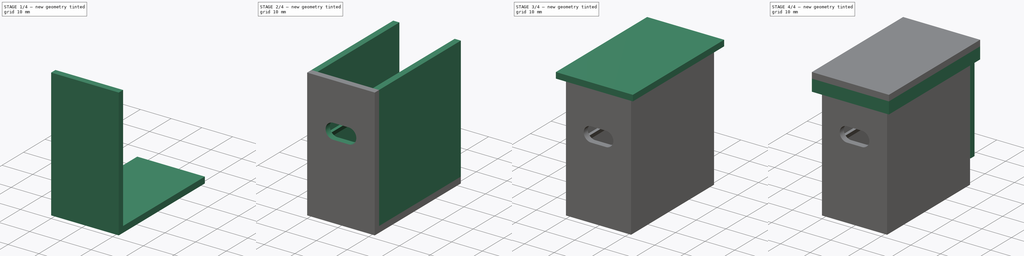
[diagram: build sequence overview — one tinted view per stage of 4, left to right]
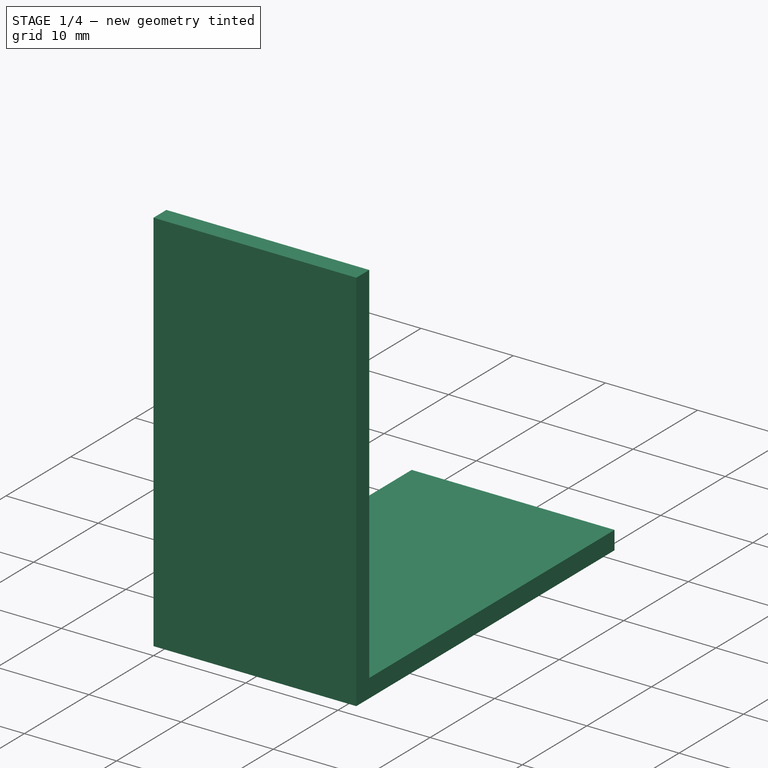
[diagram: stage 1 of 4 — iso view after this stage's code; geometry added in this stage tinted green]
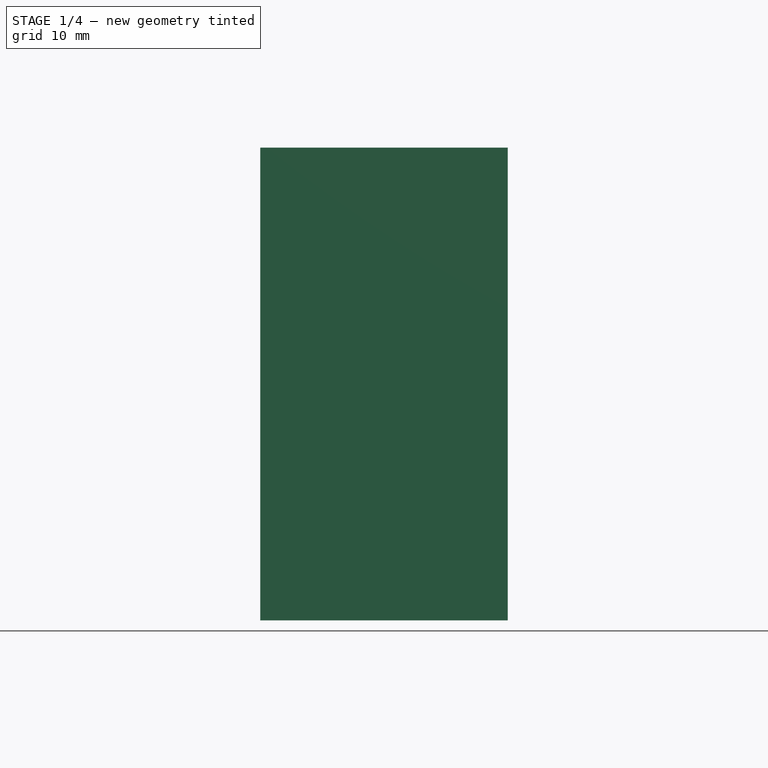
[diagram: stage 1 of 4 — front view after this stage's code; geometry added in this stage tinted green]
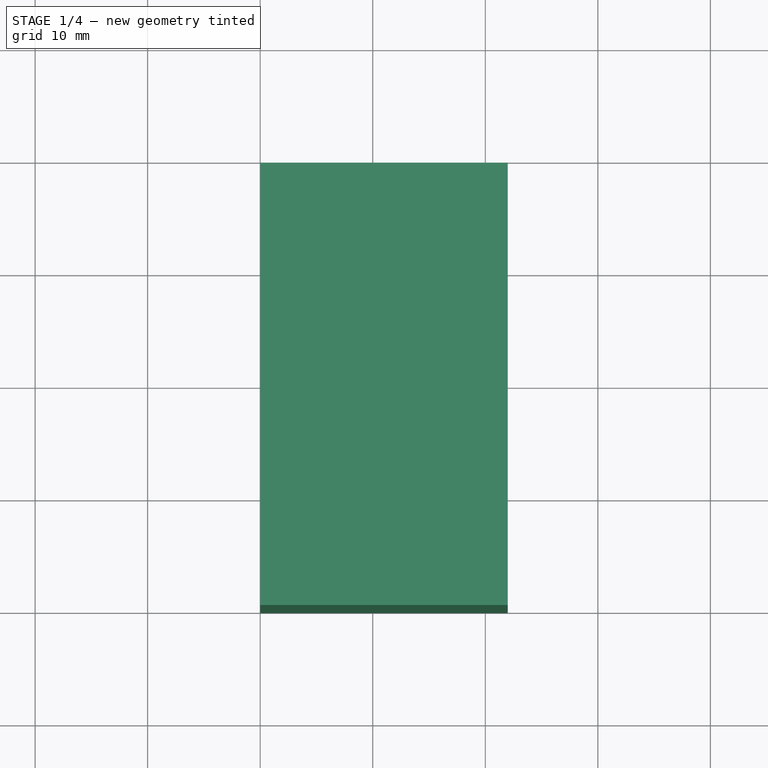
[diagram: stage 1 of 4 — top view after this stage's code; geometry added in this stage tinted green]
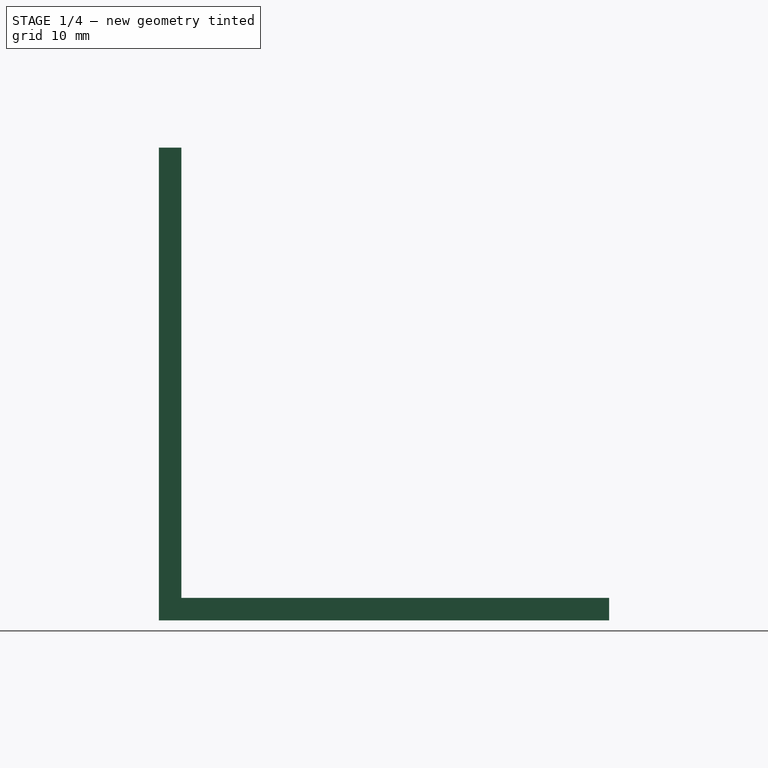
[diagram: stage 1 of 4 — right view after this stage's code; geometry added in this stage tinted green]
FCSTD DOCUMENT  (FreeCAD 0.21R33771 (Git))
Label: RP2040_Zero_Case
License: Creative Commons Attribution-NonCommercial 4.0
LicenseURL: https://creativecommons.org/licenses/by-nc/4.0/
objects: Sketcher::SketchObject×8, PartDesign::Pad×7, PartDesign::Pocket×3, PartDesign::Body×2, Part::Part2DObjectPython×2, Spreadsheet::Sheet×1, PartDesign::Plane×1
note: 33 computed .brp shape members not serialized (recipe doc carries the construction recipe); baked Part::Feature solids carry a one-line shape summary decoded from their .brp

FEATURE [Sketcher::SketchObject] Sketch  label="Base_Sketch"
  FullyConstrained = true
  MapMode = 5
  Support = -> [XY_Plane]
  expr: Constraints[10] = Spreadsheet.Base_Width
  expr: Constraints[9] = Spreadsheet.Base_Length
  sketch-geometry (4):
    g0: LineSegment StartX=0 StartY=0 StartZ=0 EndX=22 EndY=0 EndZ=0
    g1: LineSegment StartX=22 StartY=0 StartZ=0 EndX=22 EndY=40 EndZ=0
    g2: LineSegment StartX=22 StartY=40 StartZ=0 EndX=0 EndY=40 EndZ=0
    g3: LineSegment StartX=0 StartY=40 StartZ=0 EndX=0 EndY=0 EndZ=0
  constraints (11):
    c: Coincident(g0,g1)
    c: Coincident(g1,g2)
    c: Coincident(g2,g3)
    c: Coincident(g3,g0)
    c: Horizontal(g0)
    c: Horizontal(g2)
    c: Vertical(g1)
    c: Vertical(g3)
    c: Coincident(g0,g-1)
    c: DistanceY(g1,g1) = 40
    c: DistanceX(g0,g0) = 22
FEATURE [PartDesign::Pad] Pad  label="Base_Pad"
  Direction = (0,0,1)
  Length = 2
  Length2 = 10
  Profile = -> Sketch
  ReferenceAxis = -> Sketch [N_Axis]
  Reversed = true
  Type = 0
FEATURE [Spreadsheet::Sheet] Spreadsheet
  cells = A2='Base_Width; B2(Base_Width)=22; A3='Base_Length; B3(Base_Length)=40; A4='Main_Height; B4(Main_Height)=40; A5='Slot_Height; B5(Slot_Height)=25; A6='Slot_VOpening; B6(Slot_VOpening)=5; A7='Slot_HOpening; B7(Slot_HOpening)=10
FEATURE [Sketcher::SketchObject] Sketch002
  FullyConstrained = true
  MapMode = 5
  Support = -> [Pad]
  expr: Constraints[10] = Spreadsheet.Base_Width
  sketch-geometry (4):
    g0: LineSegment StartX=0 StartY=0 StartZ=0 EndX=22 EndY=0 EndZ=0
    g1: LineSegment StartX=22 StartY=0 StartZ=0 EndX=22 EndY=2 EndZ=0
    g2: LineSegment StartX=22 StartY=2 StartZ=0 EndX=0 EndY=2 EndZ=0
    g3: LineSegment StartX=0 StartY=2 StartZ=0 EndX=0 EndY=0 EndZ=0
  constraints (11):
    c: Coincident(g0,g1)
    c: Coincident(g1,g2)
    c: Coincident(g2,g3)
    c: Coincident(g3,g0)
    c: Horizontal(g0)
    c: Horizontal(g2)
    c: Vertical(g1)
    c: Vertical(g3)
    c: Coincident(g0,g-1)
    c: DistanceY(g1,g1) = 2
    c: DistanceX(g2,g2) = 22
FEATURE [PartDesign::Pad] Pad001
  BaseFeature = -> Pad
  Direction = (0,0,1)
  Length = 40
  Length2 = 10
  Profile = -> Sketch002
  ReferenceAxis = -> Sketch002 [N_Axis]
  Type = 0
  expr: Length = Spreadsheet.Main_Height
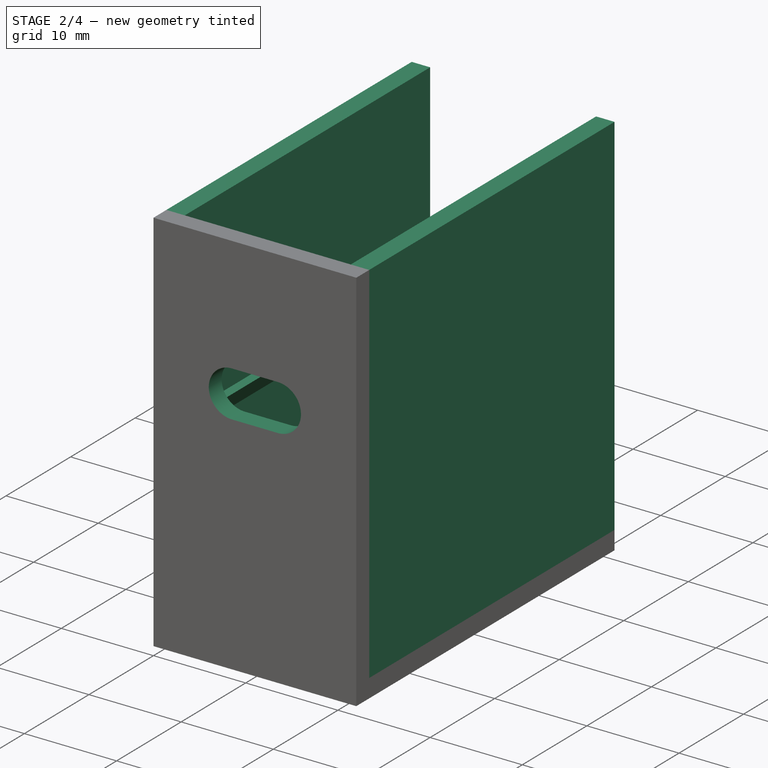
[diagram: stage 2 of 4 — iso view after this stage's code; geometry added in this stage tinted green]
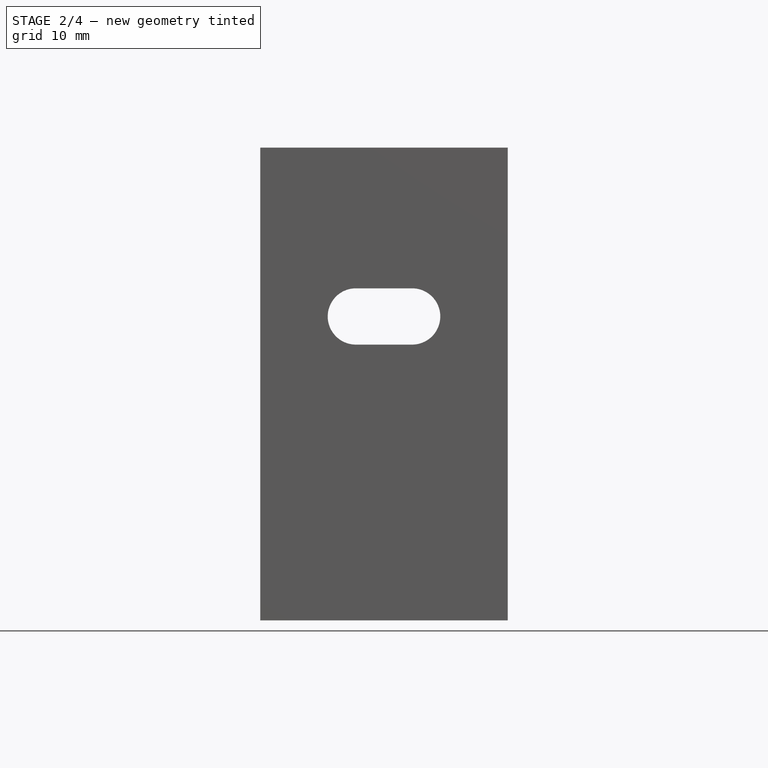
[diagram: stage 2 of 4 — front view after this stage's code; geometry added in this stage tinted green]
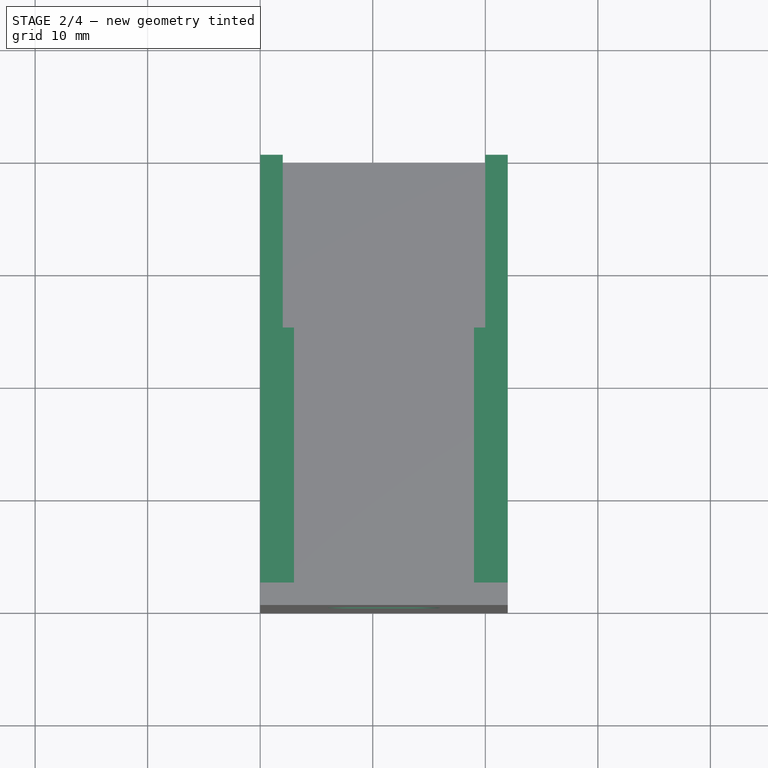
[diagram: stage 2 of 4 — top view after this stage's code; geometry added in this stage tinted green]
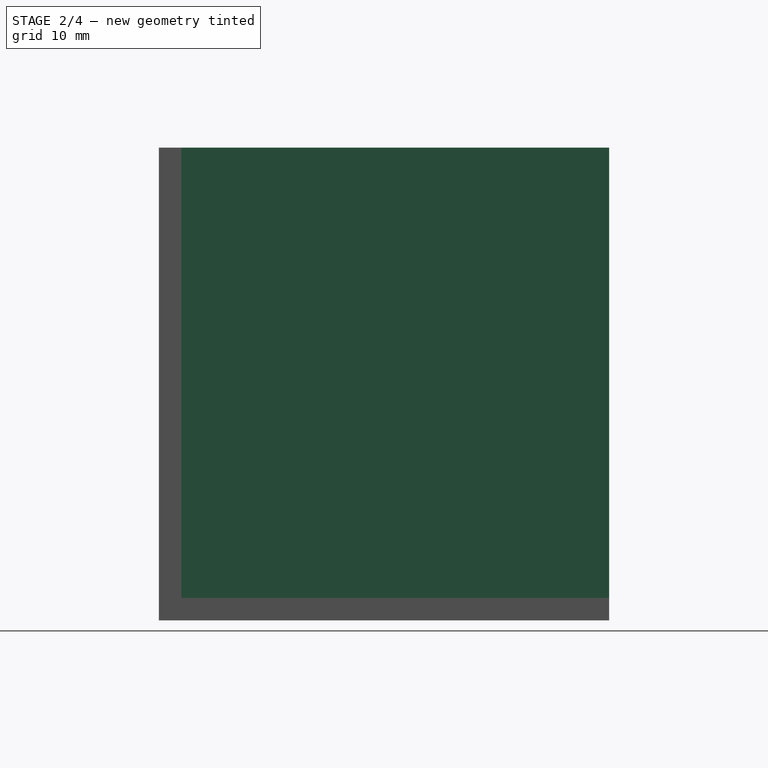
[diagram: stage 2 of 4 — right view after this stage's code; geometry added in this stage tinted green]
FEATURE [Sketcher::SketchObject] Sketch003
  FullyConstrained = true
  MapMode = 5
  Placement = pos=(0,0,0) rot=(1,0,0;1.5708rad)
  Support = -> [Pad001]
  expr: Constraints[13] = Spreadsheet.Base_Width / 2
  expr: Constraints[6] = Spreadsheet.Slot_Height
  expr: Constraints[7] = Spreadsheet.Slot_VOpening
  expr: Constraints[8] = Spreadsheet.Slot_HOpening - Spreadsheet.Slot_VOpening
  sketch-geometry (5):
    g0: ArcOfCircle CenterX=8.5 CenterY=25 CenterZ=0 NormalX=0 NormalY=0 NormalZ=1 AngleXU=0 Radius=2.5 StartAngle=1.5708 EndAngle=4.71239
    g1: ArcOfCircle CenterX=13.5 CenterY=25 CenterZ=0 NormalX=0 NormalY=0 NormalZ=1 AngleXU=0 Radius=2.5 StartAngle=4.71239 EndAngle=7.85398
    g2: LineSegment StartX=8.5 StartY=22.5 StartZ=0 EndX=13.5 EndY=22.5 EndZ=0
    g3: LineSegment StartX=13.5 StartY=27.5 StartZ=0 EndX=11 EndY=27.5 EndZ=0
    g4: LineSegment StartX=11 StartY=27.5 StartZ=0 EndX=8.5 EndY=27.5 EndZ=0
  constraints (14):
    c: Tangent(g0,g2) = -1.5708
    c: Tangent(g2,g1) = -1.5708
    c: Coincident(g1,g3) = -1.5708
    c: Coincident(g4,g0) = -1.5708
    c: Equal(g0,g1)
    c: Horizontal(g2)
    c: DistanceY(g-1,g0) = 25
    c: DistanceY(g0,g0) = 5
    c: DistanceX(g0,g1) = 5
    c: Coincident(g3,g4)
    c: Symmetric(g0,g1,g3)
    c: Vertical(g1,g1)
    c: Vertical(g0,g0)
    c: DistanceX(g-1,g3) = 11
FEATURE [PartDesign::Pocket] Pocket
  BaseFeature = -> Pad001
  Direction = (0,1,-2e-16)
  Length = 2
  Length2 = 5
  Profile = -> Sketch003
  ReferenceAxis = -> Sketch003 [N_Axis]
  Type = 0
FEATURE [Sketcher::SketchObject] Sketch004
  FullyConstrained = true
  MapMode = 5
  Support = -> [Pocket]
  expr: Constraints[19] = Spreadsheet.Base_Width
  expr: Constraints[21] = Spreadsheet.Base_Length - 2
  sketch-geometry (8):
    g0: LineSegment StartX=0 StartY=40 StartZ=0 EndX=2 EndY=40 EndZ=0
    g1: LineSegment StartX=2 StartY=40 StartZ=0 EndX=2 EndY=2 EndZ=0
    g2: LineSegment StartX=2 StartY=2 StartZ=0 EndX=0 EndY=2 EndZ=0
    g3: LineSegment StartX=0 StartY=2 StartZ=0 EndX=0 EndY=40 EndZ=0
    g4: LineSegment StartX=20 StartY=40 StartZ=0 EndX=22 EndY=40 EndZ=0
    g5: LineSegment StartX=22 StartY=40 StartZ=0 EndX=22 EndY=2 EndZ=0
    g6: LineSegment StartX=22 StartY=2 StartZ=0 EndX=20 EndY=2 EndZ=0
    g7: LineSegment StartX=20 StartY=2 StartZ=0 EndX=20 EndY=40 EndZ=0
  constraints (23):
    c: Coincident(g0,g1)
    c: Coincident(g1,g2)
    c: Coincident(g2,g3)
    c: Coincident(g3,g0)
    c: Horizontal(g0)
    c: Horizontal(g2)
    c: Vertical(g1)
    c: Coincident(g4,g5)
    c: Coincident(g5,g6)
    c: Coincident(g6,g7)
    c: Coincident(g7,g4)
    c: Horizontal(g4)
    c: Horizontal(g6)
    c: Vertical(g5)
    c: Vertical(g7)
    c: DistanceX(g0,g0) = 2
    c: DistanceX(g4,g4) = 2
    c: DistanceY(g-1,g2) = 2
    c: Tangent(g3,g-2)
    c: DistanceX(g0,g4) = 22
    c: Horizontal(g0,g4)
    c: DistanceY(g2,g0) = 38
    c: Horizontal(g1,g6)
FEATURE [PartDesign::Pad] Pad002
  BaseFeature = -> Pocket
  Direction = (0,0,1)
  Length = 40
  Length2 = 10
  Profile = -> Sketch004
  ReferenceAxis = -> Sketch004 [N_Axis]
  Type = 0
  expr: Length = Spreadsheet.Main_Height
FEATURE [Sketcher::SketchObject] Sketch005
  ExternalGeometry = -> [Pad002]
  FullyConstrained = true
  MapMode = 5
  Placement = pos=(0,2,0) rot=(0,0.707107,0.707107;3.14159rad)
  Support = -> [Pad002]
  expr: Constraints[15] = Spreadsheet.Slot_Height - 4.5
  sketch-geometry (6):
    g0: LineSegment StartX=-20 StartY=18.5 StartZ=0 EndX=-20 EndY=20.5 EndZ=0
    g1: LineSegment StartX=-20 StartY=20.5 StartZ=0 EndX=-19 EndY=20.5 EndZ=0
    g2: LineSegment StartX=-19 StartY=20.5 StartZ=0 EndX=-20 EndY=18.5 EndZ=0
    g3: LineSegment StartX=-3 StartY=20.5 StartZ=0 EndX=-2 EndY=20.5 EndZ=0
    g4: LineSegment StartX=-2 StartY=20.5 StartZ=0 EndX=-2 EndY=18.5 EndZ=0
    g5: LineSegment StartX=-3 StartY=20.5 StartZ=0 EndX=-2 EndY=18.5 EndZ=0
  constraints (18):
    c: Vertical(g0)
    c: Coincident(g0,g1)
    c: Horizontal(g1)
    c: Coincident(g1,g2)
    c: Coincident(g2,g0)
    c: Horizontal(g3)
    c: Coincident(g3,g4)
    c: Vertical(g4)
    c: Coincident(g3,g5)
    c: Coincident(g5,g4)
    c: DistanceX(g1,g1) = 1
    c: DistanceX(g3,g3) = 1
    c: DistanceY(g0,g0) = 2
    c: DistanceY(g4,g4) = 2
    c: Horizontal(g1,g3)
    c: DistanceY(g-1,g3) = 20.5
    c: DistanceX(g3,g-1) = 2
    c: Vertical(g0,g-3)
FEATURE [PartDesign::Pad] Pad003
  BaseFeature = -> Pad002
  Direction = (0,1,-2e-16)
  Length = 23
  Length2 = 10
  Profile = -> Sketch005
  ReferenceAxis = -> Sketch005 [N_Axis]
  Type = 0
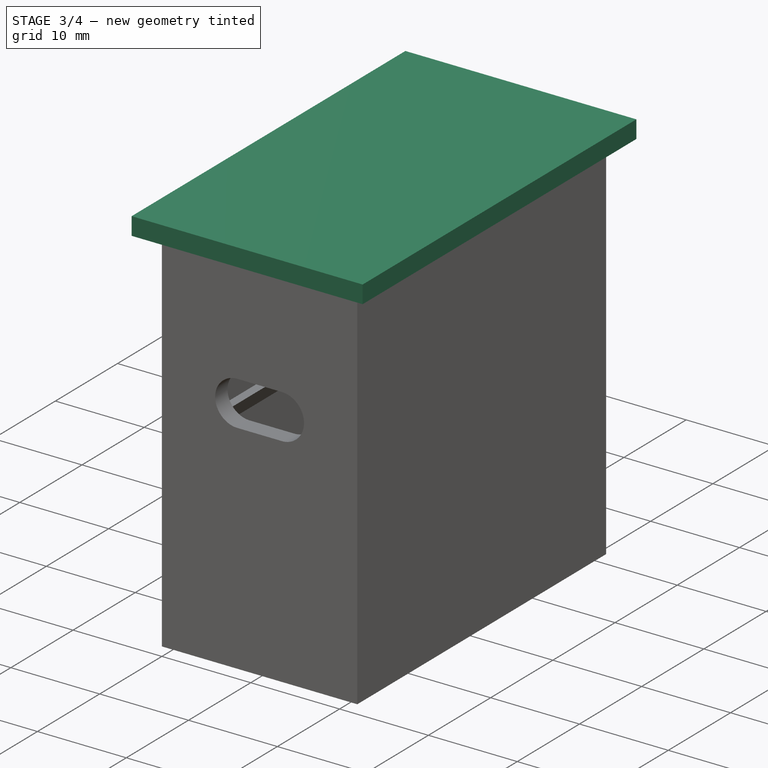
[diagram: stage 3 of 4 — iso view after this stage's code; geometry added in this stage tinted green]
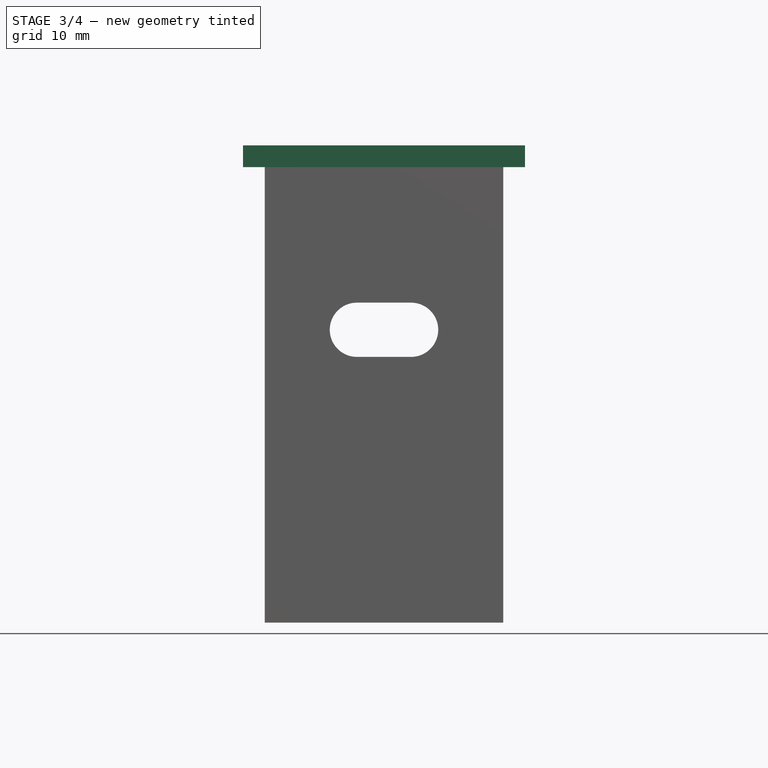
[diagram: stage 3 of 4 — front view after this stage's code; geometry added in this stage tinted green]
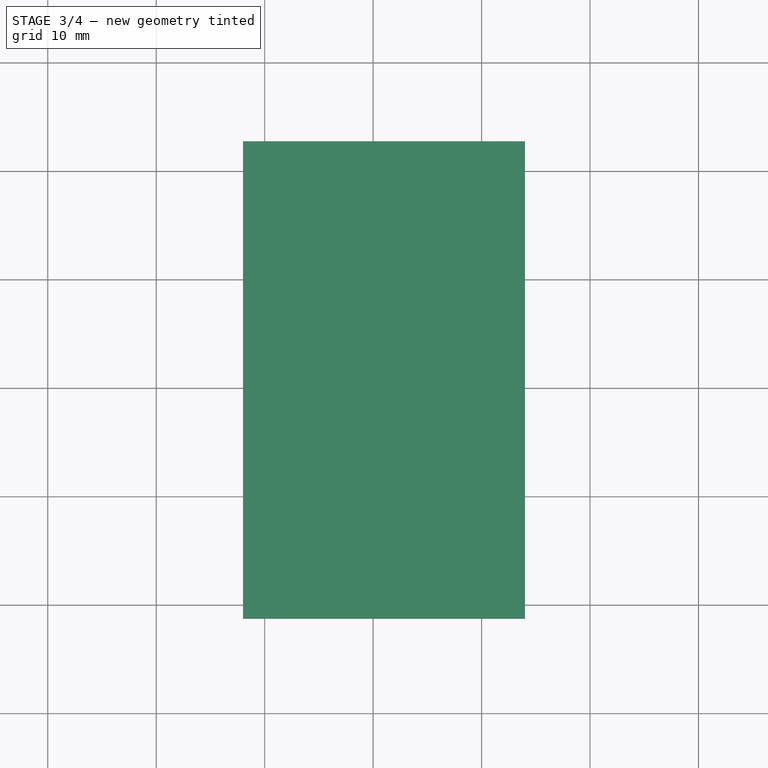
[diagram: stage 3 of 4 — top view after this stage's code; geometry added in this stage tinted green]
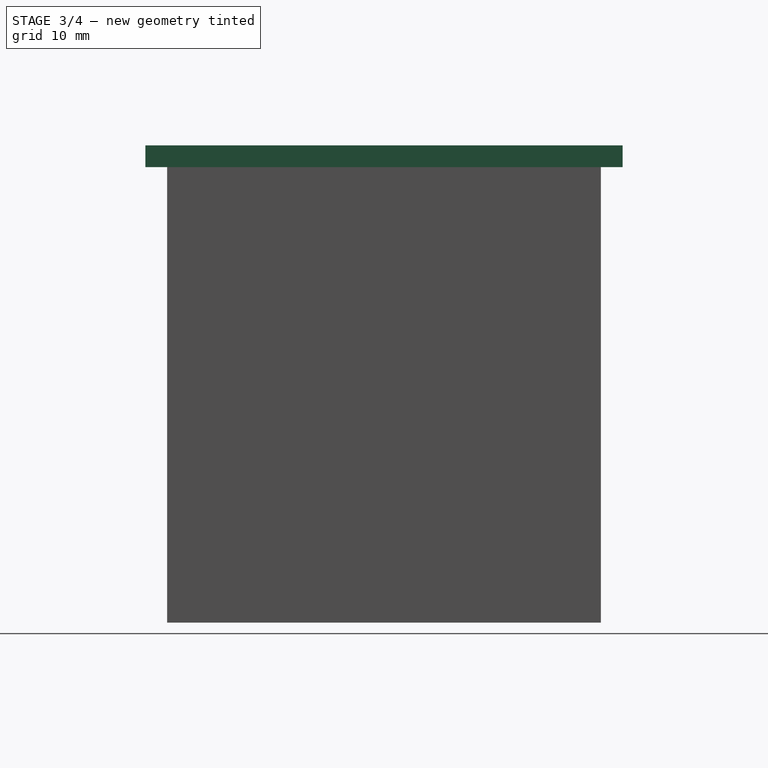
[diagram: stage 3 of 4 — right view after this stage's code; geometry added in this stage tinted green]
FEATURE [PartDesign::Plane] DatumPlane
  Length = 61.5758
  MapMode = 5
  Placement = pos=(0,0,40) rot=(0,0,1;0rad)
  ResizeMode = 0
  Support = -> [Pad003]
  Width = 78.5758
FEATURE [Sketcher::SketchObject] Sketch006
  FullyConstrained = true
  MapMode = 5
  Placement = pos=(0,0,40) rot=(0,0,1;0rad)
  Support = -> [DatumPlane]
  expr: Constraints[10] = Spreadsheet.Base_Width + 4
  expr: Constraints[11] = Spreadsheet.Base_Length + 4
  sketch-geometry (4):
    g0: LineSegment StartX=-2 StartY=-2 StartZ=0 EndX=24 EndY=-2 EndZ=0
    g1: LineSegment StartX=24 StartY=-2 StartZ=0 EndX=24 EndY=42 EndZ=0
    g2: LineSegment StartX=24 StartY=42 StartZ=0 EndX=-2 EndY=42 EndZ=0
    g3: LineSegment StartX=-2 StartY=42 StartZ=0 EndX=-2 EndY=-2 EndZ=0
  constraints (12):
    c: Coincident(g0,g1)
    c: Coincident(g1,g2)
    c: Coincident(g2,g3)
    c: Coincident(g3,g0)
    c: Horizontal(g0)
    c: Horizontal(g2)
    c: Vertical(g1)
    c: Vertical(g3)
    c: DistanceX(g0,g-1) = 2
    c: DistanceY(g0,g-1) = 2
    c: DistanceX(g0,g0) = 26
    c: DistanceY(g3,g3) = 44
FEATURE [PartDesign::Pad] Pad004
  Direction = (0,0,1)
  Length = 2
  Length2 = 10
  Placement = pos=(0,0,40) rot=(0,0,1;0rad)
  Profile = -> Sketch006
  ReferenceAxis = -> Sketch006 [N_Axis]
  Type = 0
FEATURE [PartDesign::Body] Body001  label="Cover_Body"
  Group = -> [DatumPlane,Sketch006,Pad004,Sketch007,Pad005,Sketch008,Pad006]
  Origin = -> Origin001
  Tip = -> Pad006
FEATURE [Part::Part2DObjectPython] ShapeString  # Draft 2D object (typed FeaturePython)
  FontFile = <path>
  MakeFace = true
  Placement = pos=(0,37.17,23.5) rot=(0.57735,-0.57735,-0.57735;2.0944rad)
  Size = 10
  String = MIDI
  Tracking = 0
FEATURE [Part::Part2DObjectPython] ShapeString001  # Draft 2D object (typed FeaturePython)
  FontFile = <path>
  MakeFace = true
  Placement = pos=(0,36.2957,10.5507) rot=(0.57735,-0.57735,-0.57735;2.0944rad)
  Size = 6
  String = Banger
  Tracking = 0
FEATURE [PartDesign::Pocket] Pocket001
  BaseFeature = -> Pad003
  Direction = (1,0,0)
  Length = 1
  Length2 = 5
  Profile = -> ShapeString
  ReferenceAxis = -> ShapeString [N_Axis]
  Type = 0
FEATURE [PartDesign::Pocket] Pocket002
  BaseFeature = -> Pocket001
  Direction = (1,0,0)
  Length = 1
  Length2 = 5
  Profile = -> ShapeString001
  ReferenceAxis = -> ShapeString001 [N_Axis]
  Type = 0
FEATURE [PartDesign::Body] Body  label="Base_Body"
  Group = -> [Sketch,Pad,Sketch002,Pad001,Sketch003,Pocket,Sketch004,Pad002,Sketch005,Pad003,ShapeString,ShapeString001,Pocket001,Pocket002]
  Origin = -> Origin
  Tip = -> Pocket002
note: 2 file-system paths scrubbed to <path> (originals preserved in the JSON sidecar)
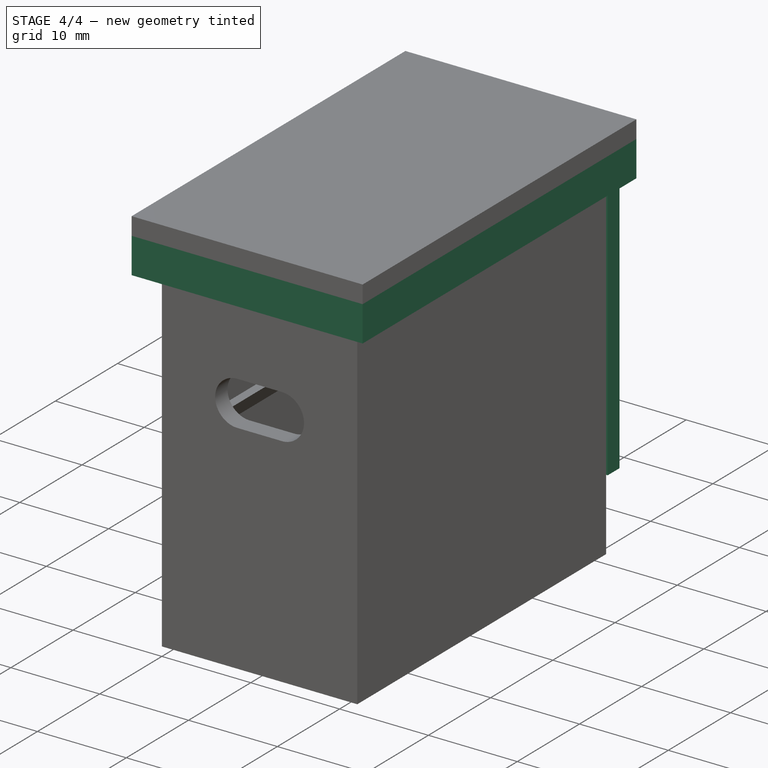
[diagram: stage 4 of 4 — iso view after this stage's code; geometry added in this stage tinted green]
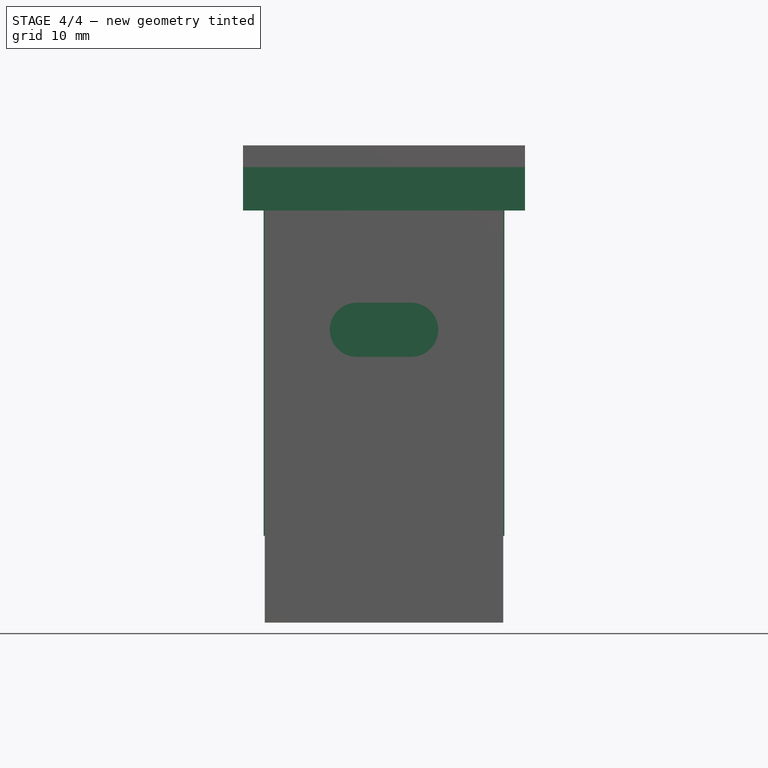
[diagram: stage 4 of 4 — front view after this stage's code; geometry added in this stage tinted green]
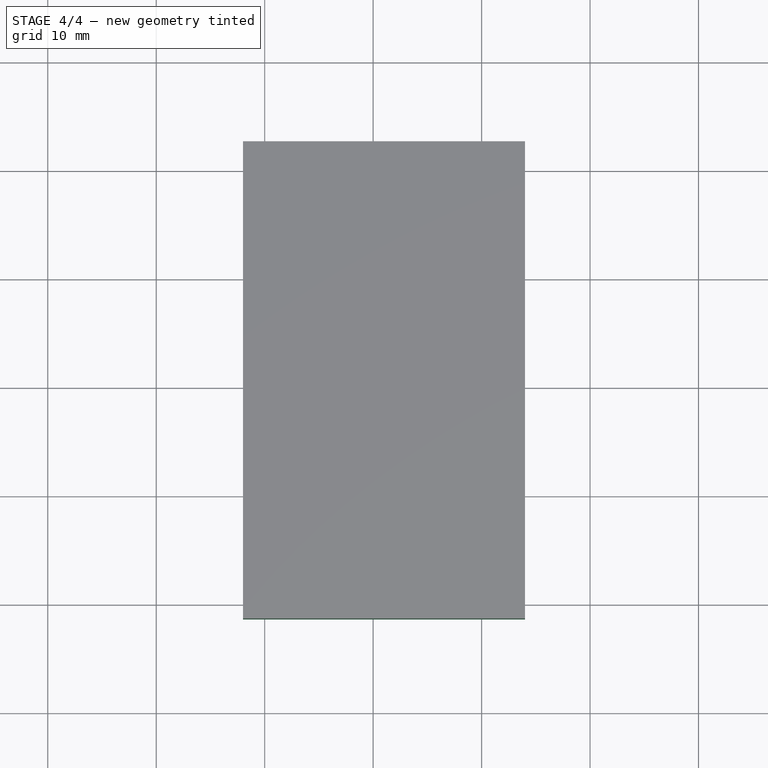
[diagram: stage 4 of 4 — top view after this stage's code; geometry added in this stage tinted green]
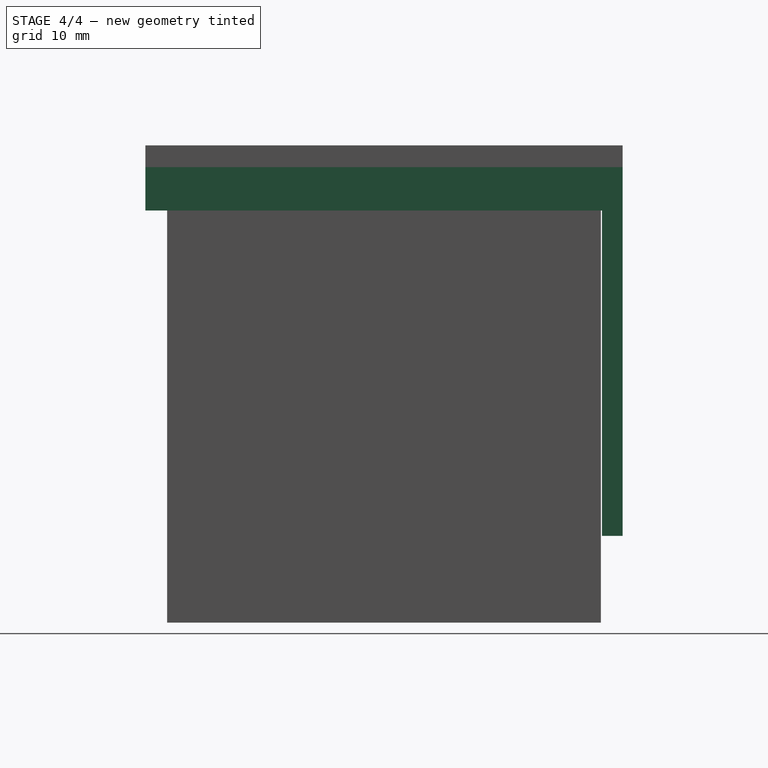
[diagram: stage 4 of 4 — right view after this stage's code; geometry added in this stage tinted green]
FEATURE [Sketcher::SketchObject] Sketch007
  ExternalGeometry = -> [Pad004]
  FullyConstrained = true
  MapMode = 5
  Placement = pos=(0,0,40) rot=(1,0,0;3.14159rad)
  Support = -> [Pad004]
  sketch-geometry (8):
    g0: LineSegment StartX=-2 StartY=2 StartZ=0 EndX=24 EndY=2 EndZ=0
    g1: LineSegment StartX=24 StartY=2 StartZ=0 EndX=24 EndY=-42 EndZ=0
    g2: LineSegment StartX=24 StartY=-42 StartZ=0 EndX=-2 EndY=-42 EndZ=0
    g3: LineSegment StartX=-2 StartY=-42 StartZ=0 EndX=-2 EndY=2 EndZ=0
    g4: LineSegment StartX=-0.1 StartY=0.1 StartZ=0 EndX=22.1 EndY=0.1 EndZ=0
    g5: LineSegment StartX=22.1 StartY=0.1 StartZ=0 EndX=22.1 EndY=-40.1 EndZ=0
    g6: LineSegment StartX=22.1 StartY=-40.1 StartZ=0 EndX=-0.1 EndY=-40.1 EndZ=0
    g7: LineSegment StartX=-0.1 StartY=-40.1 StartZ=0 EndX=-0.1 EndY=0.1 EndZ=0
  constraints (22):
    c: Coincident(g0,g1)
    c: Coincident(g1,g2)
    c: Coincident(g2,g3)
    c: Coincident(g3,g0)
    c: Horizontal(g0)
    c: Horizontal(g2)
    c: Vertical(g1)
    c: Vertical(g3)
    c: Coincident(g4,g5)
    c: Coincident(g5,g6)
    c: Coincident(g6,g7)
    c: Coincident(g7,g4)
    c: Horizontal(g4)
    c: Horizontal(g6)
    c: Vertical(g5)
    c: Vertical(g7)
    c: Coincident(g2,g-4)
    c: Coincident(g0,g-3)
    c: DistanceX(g2,g6) = 1.9
    c: DistanceX(g4,g0) = 1.9
    c: DistanceY(g4,g0) = 1.9
    c: DistanceY(g2,g6) = 1.9
FEATURE [PartDesign::Pad] Pad005
  BaseFeature = -> Pad004
  Direction = (0,0,-1)
  Length = 4
  Length2 = 10
  Placement = pos=(0,0,40) rot=(0,0,1;0rad)
  Profile = -> Sketch007
  ReferenceAxis = -> Sketch007 [N_Axis]
  Type = 0
FEATURE [Sketcher::SketchObject] Sketch008
  ExternalGeometry = -> [Pad005]
  FullyConstrained = true
  MapMode = 5
  Placement = pos=(0,0,36) rot=(1,0,0;3.14159rad)
  Support = -> [Pad005]
  sketch-geometry (4):
    g0: LineSegment StartX=-0.1 StartY=-40.1 StartZ=0 EndX=22.1 EndY=-40.1 EndZ=0
    g1: LineSegment StartX=22.1 StartY=-40.1 StartZ=0 EndX=22.1 EndY=-42 EndZ=0
    g2: LineSegment StartX=22.1 StartY=-42 StartZ=0 EndX=-0.1 EndY=-42 EndZ=0
    g3: LineSegment StartX=-0.1 StartY=-42 StartZ=0 EndX=-0.1 EndY=-40.1 EndZ=0
  constraints (10):
    c: Coincident(g0,g1)
    c: Coincident(g1,g2)
    c: Coincident(g2,g3)
    c: Coincident(g3,g0)
    c: Horizontal(g2)
    c: Vertical(g1)
    c: Vertical(g3)
    c: Coincident(g0,g-3)
    c: Coincident(g-3,g0)
    c: DistanceY(g1,g1) = 1.9
FEATURE [PartDesign::Pad] Pad006
  BaseFeature = -> Pad005
  Direction = (0,0,-1)
  Length = 30
  Length2 = 10
  Placement = pos=(0,0,40) rot=(0,0,1;0rad)
  Profile = -> Sketch008
  ReferenceAxis = -> Sketch008 [N_Axis]
  Type = 0
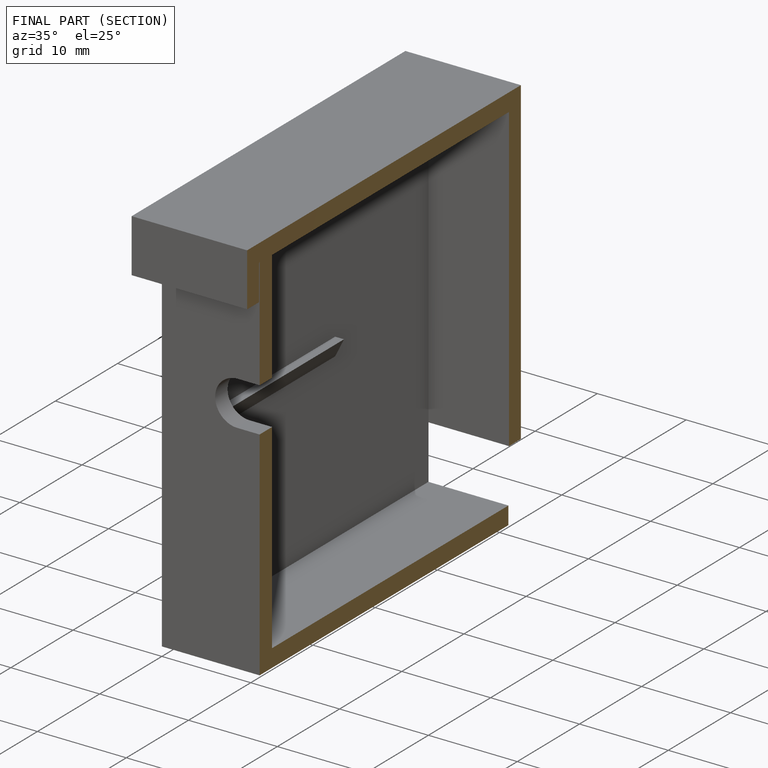
[diagram: finished part — half-section view (interior)]
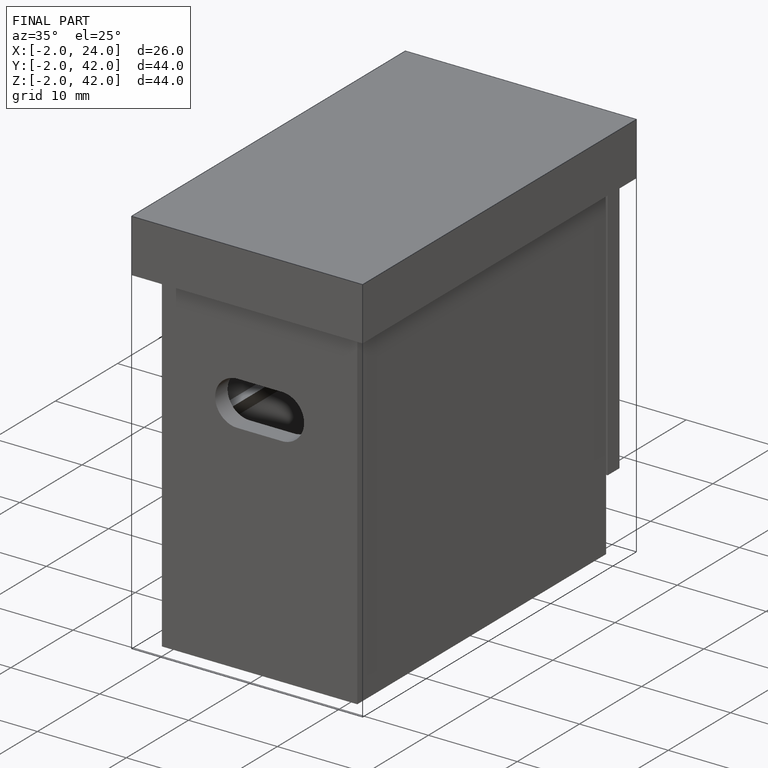
[diagram: finished part — iso view with bounding-box wireframe]
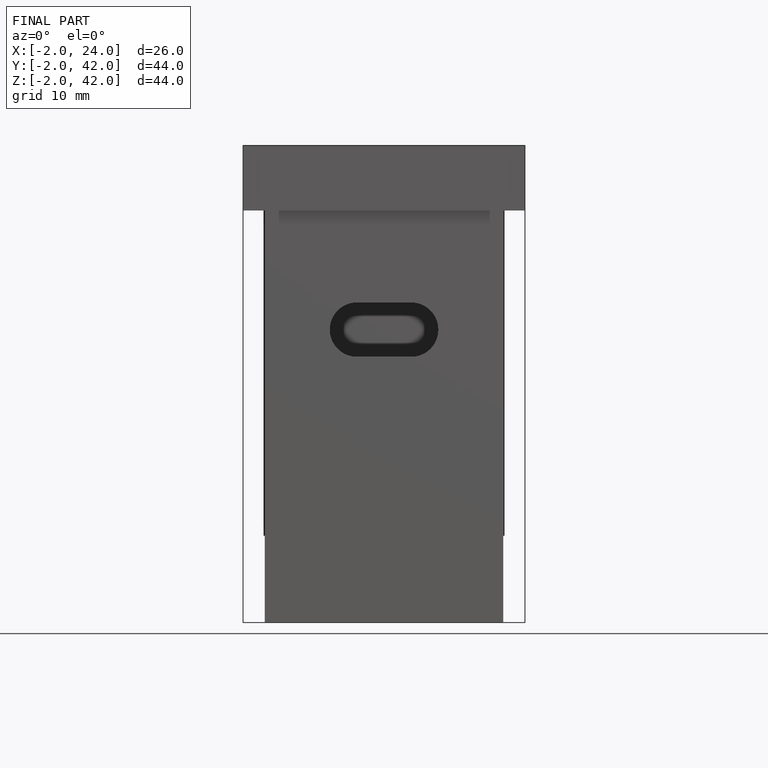
[diagram: finished part — front view with bounding-box wireframe]
